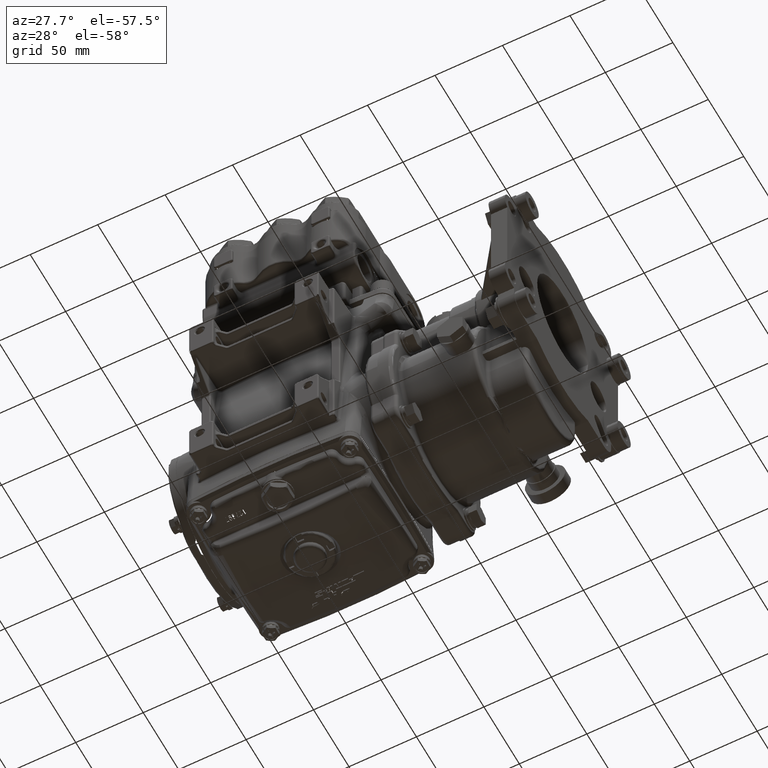
[diagram: clean part render]
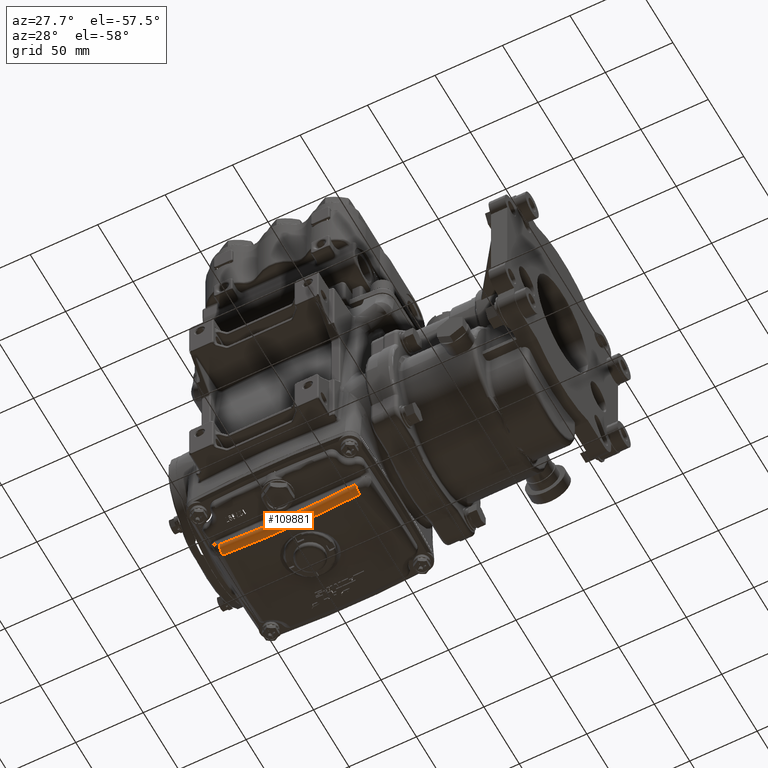
[diagram: same view with one face highlighted and labeled with its STEP entity id]
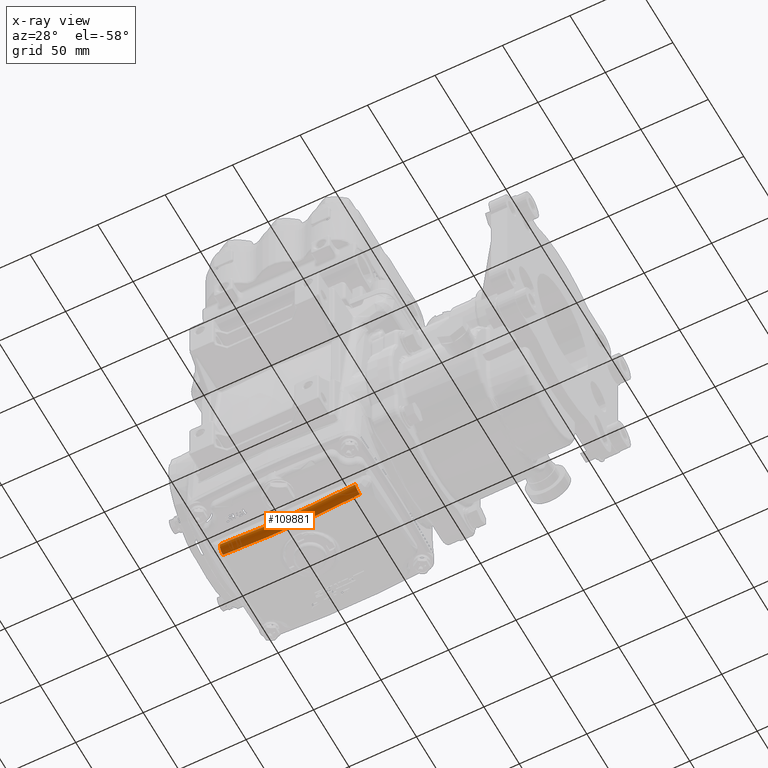
[diagram: x-ray of the same camera — body ghosted, the highlighted face saturated]
A machine part, auxiliary view. The second image highlights one B-rep face of the part: STEP entity #109881.
The next image is the same camera in x-ray: the body ghosted, the highlighted face saturated — about 0% of this face is hidden behind the body in this view.
In plain terms, the highlighted toroidal blend (fillet) surface has major radius 494.565 mm and minor (blend) radius 5 mm.
Its self-contained STEP definition (entity closure, byte-faithful):
#4095 = DIRECTION ( 'NONE',  ( 0.000000000000000000, 1.000000000000000000, -0.000000000000000000 ) ) ;
#4990 = EDGE_CURVE ( 'NONE', #109700, #102883, #116864, .T. ) ;
#6094 = CARTESIAN_POINT ( 'NONE',  ( 1.977110063958240405, -1.259842519685039353, -3.031846117286614906 ) ) ;
#7524 = EDGE_CURVE ( 'NONE', #67464, #103492, #81681, .T. ) ;
#9046 = CARTESIAN_POINT ( 'NONE',  ( 0.000000000000000000, -1.062992125984252745, 16.33858267716535551 ) ) ;
#9757 = ORIENTED_EDGE ( 'NONE', *, *, #7524, .F. ) ;
#10760 = AXIS2_PLACEMENT_3D ( 'NONE', #9046, #111744, #55419 ) ;
#13196 = EDGE_CURVE ( 'NONE', #109700, #67464, #28971, .T. ) ;
#13629 = DIRECTION ( 'NONE',  ( -0.9948313636939557503, -0.000000000000000000, 0.1015409169292097735 ) ) ;
#16111 = AXIS2_PLACEMENT_3D ( 'NONE', #119648, #53445, #64581 ) ;
#16660 = TOROIDAL_SURFACE ( 'NONE', #10760, 19.47106766168560554, 0.1968503937007874127 ) ;
#17170 = ORIENTED_EDGE ( 'NONE', *, *, #13196, .F. ) ;
#22647 = DIRECTION ( 'NONE',  ( -1.000000000000000000, 0.000000000000000000, 5.333931207850942581E-15 ) ) ;
#24193 = AXIS2_PLACEMENT_3D ( 'NONE', #75298, #29500, #28278 ) ;
#28278 = DIRECTION ( 'NONE',  ( 1.000000000000000000, 0.000000000000000000, -5.275390458629019537E-15 ) ) ;
#28971 = CIRCLE ( 'NONE', #94143, 19.66710084342715703 ) ;
#29500 = DIRECTION ( 'NONE',  ( -0.000000000000000000, -1.000000000000000000, -0.000000000000000000 ) ) ;
#30095 = CARTESIAN_POINT ( 'NONE',  ( 0.000000000000000000, -1.045073723253141296, 16.33858267716535551 ) ) ;
#30569 = EDGE_CURVE ( 'NONE', #103492, #102883, #103280, .T. ) ;
#41895 = CARTESIAN_POINT ( 'NONE',  ( 1.996984731275934122, -1.045073800574857437, -3.226869221167618651 ) ) ;
#53445 = DIRECTION ( 'NONE',  ( -0.9948313636939557503, 0.000000000000000000, -0.1015409169292097735 ) ) ;
#55419 = DIRECTION ( 'NONE',  ( 1.000000000000000000, 0.000000000000000000, 0.000000000000000000 ) ) ;
#64581 = DIRECTION ( 'NONE',  ( -0.1015409169292104258, 0.000000000000000000, 0.9948313636939555282 ) ) ;
#67464 = VERTEX_POINT ( 'NONE', #75983 ) ;
#73369 = FACE_OUTER_BOUND ( 'NONE', #98176, .T. ) ;
#75298 = CARTESIAN_POINT ( 'NONE',  ( 0.000000000000000000, -1.259842519685039353, 16.33858267716535551 ) ) ;
#75983 = CARTESIAN_POINT ( 'NONE',  ( -1.996984731275934122, -1.045073800574857437, -3.226869221167618651 ) ) ;
#81681 = CIRCLE ( 'NONE', #117307, 0.1968503937007871629 ) ;
#88455 = CARTESIAN_POINT ( 'NONE',  ( -1.977110063958240405, -1.062992125984252745, -3.031846117286617126 ) ) ;
#94143 = AXIS2_PLACEMENT_3D ( 'NONE', #30095, #4095, #22647 ) ;
#98176 = EDGE_LOOP ( 'NONE', ( #105446, #9757, #17170, #111093 ) ) ;
#99589 = DIRECTION ( 'NONE',  ( 0.1015409169292104258, 0.000000000000000000, 0.9948313636939555282 ) ) ;
#102883 = VERTEX_POINT ( 'NONE', #6094 ) ;
#103280 = CIRCLE ( 'NONE', #24193, 19.47106766168560554 ) ;
#103492 = VERTEX_POINT ( 'NONE', #113792 ) ;
#105446 = ORIENTED_EDGE ( 'NONE', *, *, #30569, .F. ) ;
#109700 = VERTEX_POINT ( 'NONE', #41895 ) ;
#109881 = ADVANCED_FACE ( 'NONE', ( #73369 ), #16660, .T. ) ;
#111093 = ORIENTED_EDGE ( 'NONE', *, *, #4990, .T. ) ;
#111744 = DIRECTION ( 'NONE',  ( 0.000000000000000000, 1.000000000000000000, 0.000000000000000000 ) ) ;
#113792 = CARTESIAN_POINT ( 'NONE',  ( -1.977110063958240405, -1.259842519685039353, -3.031846117286614906 ) ) ;
#116864 = CIRCLE ( 'NONE', #16111, 0.1968503937007871629 ) ;
#117307 = AXIS2_PLACEMENT_3D ( 'NONE', #88455, #13629, #99589 ) ;
#119648 = CARTESIAN_POINT ( 'NONE',  ( 1.977110063958240405, -1.062992125984252745, -3.031846117286617126 ) ) ;